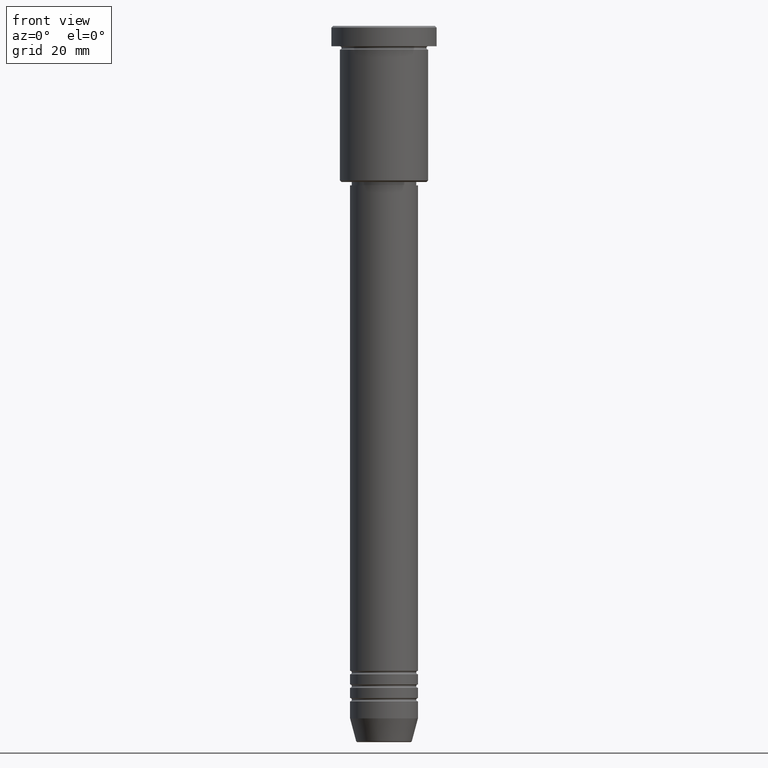
[diagram: clean part render]
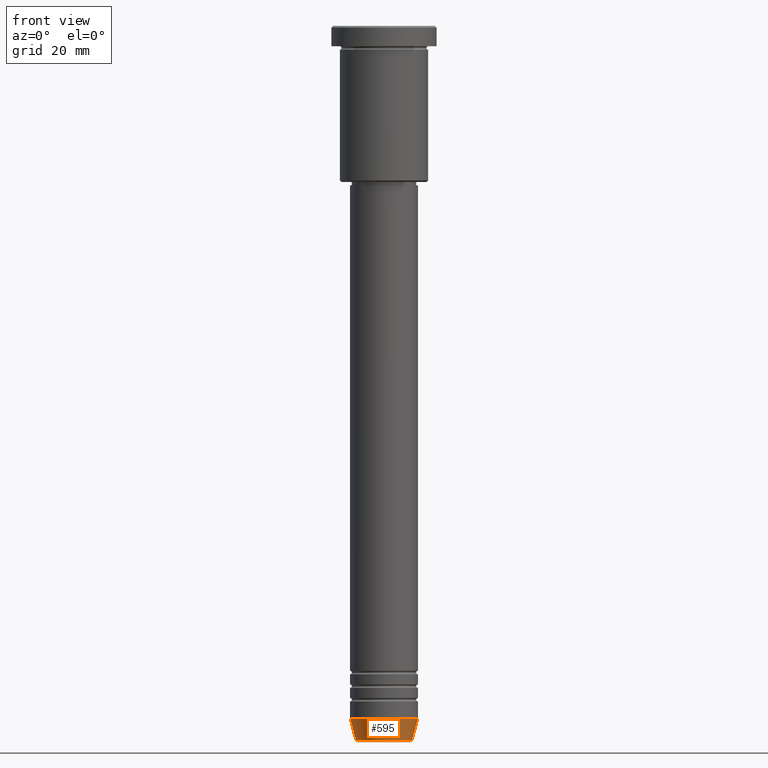
[diagram: same view with one face highlighted and labeled with its STEP entity id]
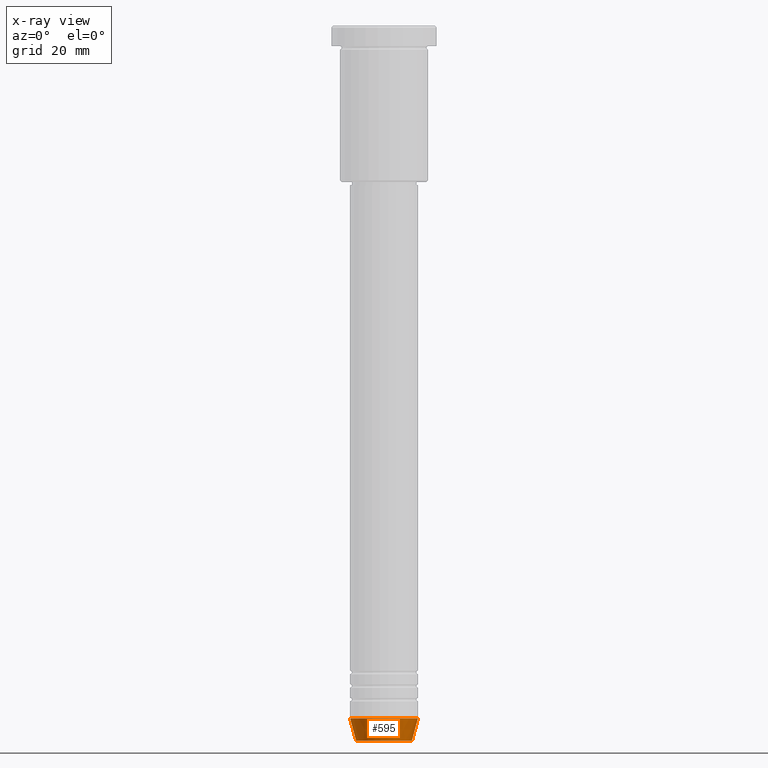
[diagram: x-ray of the same camera — body ghosted, the highlighted face saturated]
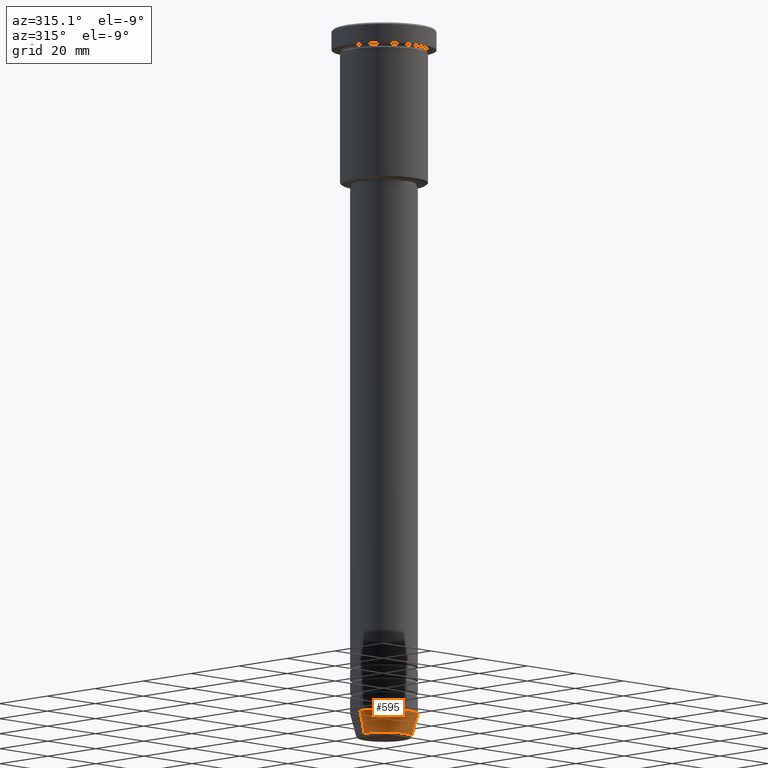
[diagram: same view with one face highlighted and labeled with its STEP entity id]
A machine part, front view. The second image highlights one B-rep face of the part: STEP entity #595.
The next image is the same camera in x-ray: the body ghosted, the highlighted face saturated — about 0% of this face is hidden behind the body in this view.
A second angle (auxiliary view) of the same face is appended — the face is thin or edge-on in the first view.
In plain terms, the highlighted conical surface has half-angle 15 deg.
Its self-contained STEP definition (entity closure, byte-faithful):
#44 = CARTESIAN_POINT ( 'NONE',  ( 0.000000000000000000, 0.000000000000000000, -204.0000000000000284 ) ) ;
#105 = VERTEX_POINT ( 'NONE', #645 ) ;
#117 = CONICAL_SURFACE ( 'NONE', #913, 10.00000000000000000, 0.2617993877991497964 ) ;
#137 = EDGE_CURVE ( 'NONE', #654, #442, #389, .T. ) ;
#166 = DIRECTION ( 'NONE',  ( -0.000000000000000000, -0.000000000000000000, 1.000000000000000000 ) ) ;
#184 = DIRECTION ( 'NONE',  ( 1.000000000000000000, 0.000000000000000000, 0.000000000000000000 ) ) ;
#227 = EDGE_CURVE ( 'NONE', #105, #624, #1105, .T. ) ;
#271 = CARTESIAN_POINT ( 'NONE',  ( 0.000000000000000000, 0.000000000000000000, -210.6294095225512990 ) ) ;
#289 = CARTESIAN_POINT ( 'NONE',  ( 10.00000000000000000, 0.000000000000000000, -204.0000000000000284 ) ) ;
#307 = DIRECTION ( 'NONE',  ( -0.000000000000000000, -0.000000000000000000, 1.000000000000000000 ) ) ;
#349 = EDGE_CURVE ( 'NONE', #624, #442, #1002, .T. ) ;
#389 = LINE ( 'NONE', #289, #627 ) ;
#423 = CARTESIAN_POINT ( 'NONE',  ( 10.00000000000000000, 0.000000000000000000, -204.0000000000000284 ) ) ;
#442 = VERTEX_POINT ( 'NONE', #423 ) ;
#463 = EDGE_LOOP ( 'NONE', ( #1108, #1025, #1104, #1170 ) ) ;
#531 = DIRECTION ( 'NONE',  ( 1.000000000000000000, 0.000000000000000000, 0.000000000000000000 ) ) ;
#575 = DIRECTION ( 'NONE',  ( 0.2588190451025210725, 0.000000000000000000, 0.9659258262890680902 ) ) ;
#583 = CARTESIAN_POINT ( 'NONE',  ( -10.00000000000000000, 1.224646799147353256E-15, -204.0000000000000284 ) ) ;
#595 = ADVANCED_FACE ( 'NONE', ( #1156 ), #117, .T. ) ;
#623 = EDGE_CURVE ( 'NONE', #105, #654, #1058, .T. ) ;
#624 = VERTEX_POINT ( 'NONE', #998 ) ;
#627 = VECTOR ( 'NONE', #575, 1000.000000000000114 ) ;
#645 = CARTESIAN_POINT ( 'NONE',  ( -8.223655072137185940, 1.115877042642911659E-15, -210.6294095225512990 ) ) ;
#654 = VERTEX_POINT ( 'NONE', #724 ) ;
#724 = CARTESIAN_POINT ( 'NONE',  ( 8.223655072137185940, 0.000000000000000000, -210.6294095225512990 ) ) ;
#730 = CARTESIAN_POINT ( 'NONE',  ( 0.000000000000000000, 0.000000000000000000, -204.0000000000000284 ) ) ;
#839 = VECTOR ( 'NONE', #849, 1000.000000000000114 ) ;
#849 = DIRECTION ( 'NONE',  ( -0.2588190451025210725, 3.169619151431769255E-17, 0.9659258262890680902 ) ) ;
#891 = AXIS2_PLACEMENT_3D ( 'NONE', #271, #166, #531 ) ;
#913 = AXIS2_PLACEMENT_3D ( 'NONE', #730, #973, #184 ) ;
#967 = DIRECTION ( 'NONE',  ( 1.000000000000000000, 0.000000000000000000, 0.000000000000000000 ) ) ;
#973 = DIRECTION ( 'NONE',  ( -0.000000000000000000, -0.000000000000000000, 1.000000000000000000 ) ) ;
#998 = CARTESIAN_POINT ( 'NONE',  ( -10.00000000000000000, 1.224646799147353256E-15, -204.0000000000000284 ) ) ;
#1002 = CIRCLE ( 'NONE', #1149, 10.00000000000000000 ) ;
#1025 = ORIENTED_EDGE ( 'NONE', *, *, #623, .T. ) ;
#1058 = CIRCLE ( 'NONE', #891, 8.223655072137185940 ) ;
#1104 = ORIENTED_EDGE ( 'NONE', *, *, #137, .T. ) ;
#1105 = LINE ( 'NONE', #583, #839 ) ;
#1108 = ORIENTED_EDGE ( 'NONE', *, *, #227, .F. ) ;
#1149 = AXIS2_PLACEMENT_3D ( 'NONE', #44, #307, #967 ) ;
#1156 = FACE_OUTER_BOUND ( 'NONE', #463, .T. ) ;
#1170 = ORIENTED_EDGE ( 'NONE', *, *, #349, .F. ) ;